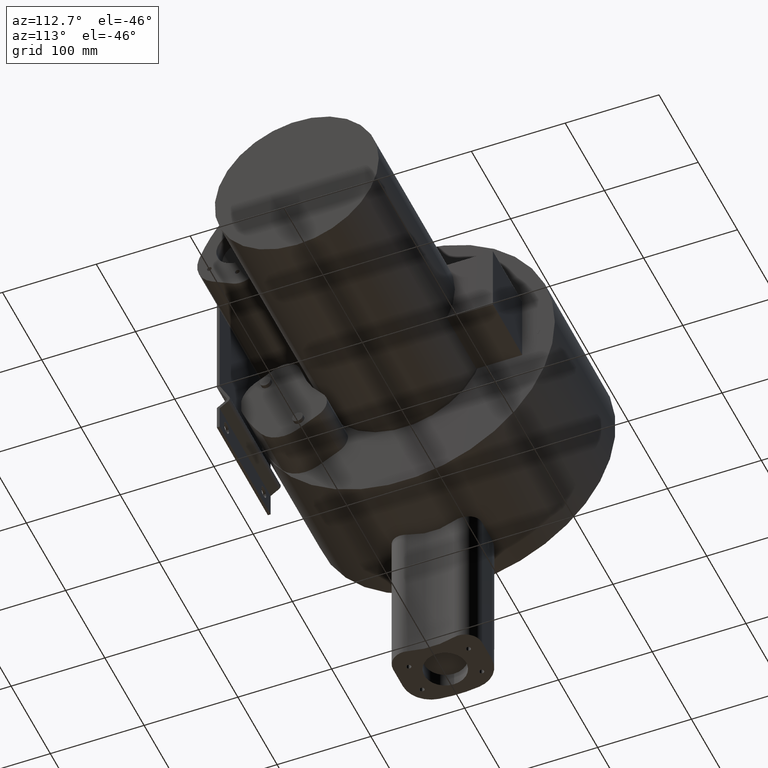
[diagram: clean part render]
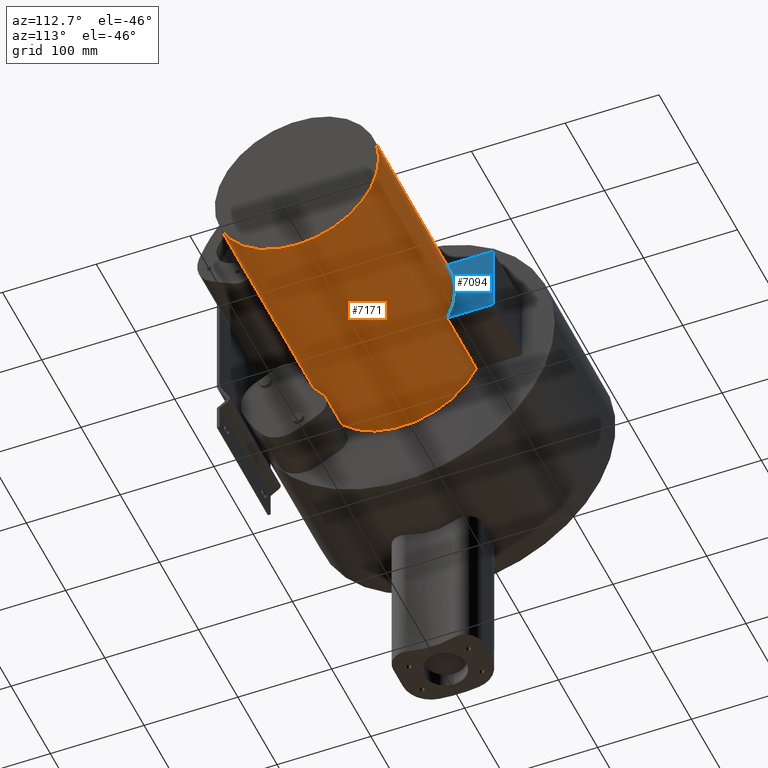
[diagram: same view with the hole feature highlighted: cylindrical wall and planar end face, labeled with their STEP entity ids]
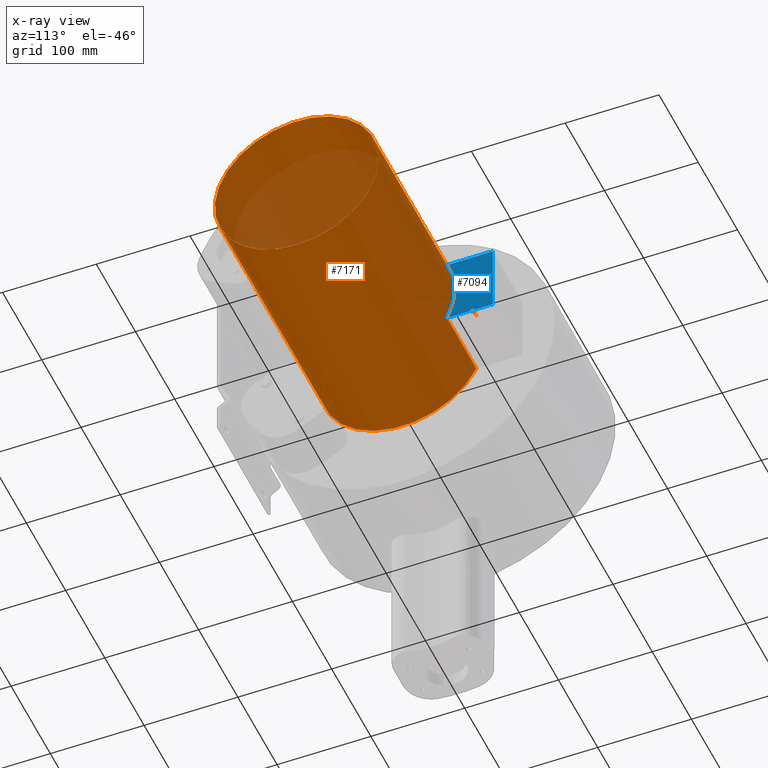
[diagram: x-ray of the same camera — body ghosted, the hole faces saturated]
A machine part, auxiliary view. The highlighted faces form one hole feature of diameter 175 mm: the cylindrical wall (entity #7171, orange) and its adjacent planar end face (entity #7094, blue) — they share a circular edge in the B-rep.
The next image is the same camera in x-ray (body ghosted, the hole faces saturated) — the bore reads through the body.
Wall:
#7028=CARTESIAN_POINT('',(159.00000000000003,79.056941504209476,-37.5));
#7029=VERTEX_POINT('',#7028);
#7030=CARTESIAN_POINT('',(234.00000000000003,79.056941504209476,-37.5));
#7031=VERTEX_POINT('',#7030);
#7032=CARTESIAN_POINT('',(159.00000000000003,79.056941504209476,-37.5));
#7033=DIRECTION('',(1.0,0.0,0.0));
#7034=VECTOR('',#7033,75.0);
#7035=LINE('',#7032,#7034);
#7036=EDGE_CURVE('',#7029,#7031,#7035,.T.);
#7068=CARTESIAN_POINT('',(234.00000000000003,79.056941504209476,37.5));
#7069=VERTEX_POINT('',#7068);
#7070=CARTESIAN_POINT('',(234.00000000000003,0.0,0.0));
#7071=DIRECTION('',(1.0,0.0,0.0));
#7072=DIRECTION('',(0.0,0.0,1.0));
#7073=AXIS2_PLACEMENT_3D('',#7070,#7071,#7072);
#7074=CIRCLE('',#7073,87.5);
#7075=EDGE_CURVE('',#7031,#7069,#7074,.T.);
#7100=CARTESIAN_POINT('',(159.00000000000003,79.056941504209476,37.5));
#7101=VERTEX_POINT('',#7100);
#7102=CARTESIAN_POINT('',(234.00000000000003,79.056941504209476,37.5));
#7103=DIRECTION('',(-1.0,0.0,0.0));
#7104=VECTOR('',#7103,75.0);
#7105=LINE('',#7102,#7104);
#7106=EDGE_CURVE('',#7069,#7101,#7105,.T.);
#7143=CARTESIAN_POINT('',(159.00000000000003,0.0,0.0));
#7144=DIRECTION('',(1.0,0.0,0.0));
#7145=DIRECTION('',(0.0,0.0,1.0));
#7146=AXIS2_PLACEMENT_3D('',#7143,#7144,#7145);
#7147=CYLINDRICAL_SURFACE('',#7146,87.5);
#7148=ORIENTED_EDGE('',*,*,#7036,.T.);
#7149=ORIENTED_EDGE('',*,*,#7075,.T.);
#7150=ORIENTED_EDGE('',*,*,#7106,.T.);
#7151=CARTESIAN_POINT('',(159.00000000000003,0.0,0.0));
#7152=DIRECTION('',(-1.0,0.0,0.0));
#7153=DIRECTION('',(0.0,0.0,1.0));
#7154=AXIS2_PLACEMENT_3D('',#7151,#7152,#7153);
#7155=CIRCLE('',#7154,87.5);
#7156=EDGE_CURVE('',#7029,#7101,#7155,.T.);
#7157=ORIENTED_EDGE('',*,*,#7156,.F.);
#7158=EDGE_LOOP('',(#7148,#7149,#7150,#7157));
#7159=FACE_OUTER_BOUND('',#7158,.T.);
#7160=CARTESIAN_POINT('',(428.00000000000006,1.071566E-014,-87.5));
#7161=VERTEX_POINT('',#7160);
#7162=CARTESIAN_POINT('',(428.00000000000006,0.0,0.0));
#7163=DIRECTION('',(-1.0,0.0,0.0));
#7164=DIRECTION('',(0.0,0.0,1.0));
#7165=AXIS2_PLACEMENT_3D('',#7162,#7163,#7164);
#7166=CIRCLE('',#7165,87.5);
#7167=EDGE_CURVE('',#7161,#7161,#7166,.T.);
#7168=ORIENTED_EDGE('',*,*,#7167,.T.);
#7169=EDGE_LOOP('',(#7168));
#7170=FACE_BOUND('',#7169,.T.);
#7171=ADVANCED_FACE('',(#7159,#7170),#7147,.T.);
End face:
#7030=CARTESIAN_POINT('',(234.00000000000003,79.056941504209476,-37.5));
#7031=VERTEX_POINT('',#7030);
#7046=CARTESIAN_POINT('',(234.00000000000003,128.0,-37.5));
#7047=VERTEX_POINT('',#7046);
#7054=CARTESIAN_POINT('',(234.00000000000003,79.056941504209476,-37.5));
#7055=DIRECTION('',(0.0,1.0,0.0));
#7056=VECTOR('',#7055,48.943058495790524);
#7057=LINE('',#7054,#7056);
#7058=EDGE_CURVE('',#7031,#7047,#7057,.T.);
#7063=CARTESIAN_POINT('',(234.00000000000003,0.0,0.0));
#7064=DIRECTION('',(1.0,0.0,0.0));
#7065=DIRECTION('',(0.0,0.0,-1.0));
#7066=AXIS2_PLACEMENT_3D('',#7063,#7064,#7065);
#7067=PLANE('',#7066);
#7068=CARTESIAN_POINT('',(234.00000000000003,79.056941504209476,37.5));
#7069=VERTEX_POINT('',#7068);
#7070=CARTESIAN_POINT('',(234.00000000000003,0.0,0.0));
#7071=DIRECTION('',(1.0,0.0,0.0));
#7072=DIRECTION('',(0.0,0.0,1.0));
#7073=AXIS2_PLACEMENT_3D('',#7070,#7071,#7072);
#7074=CIRCLE('',#7073,87.5);
#7075=EDGE_CURVE('',#7031,#7069,#7074,.T.);
#7076=ORIENTED_EDGE('',*,*,#7075,.F.);
#7077=ORIENTED_EDGE('',*,*,#7058,.T.);
#7078=CARTESIAN_POINT('',(234.00000000000003,128.0,37.5));
#7079=VERTEX_POINT('',#7078);
#7080=CARTESIAN_POINT('',(234.00000000000003,128.0,-37.5));
#7081=DIRECTION('',(0.0,0.0,1.0));
#7082=VECTOR('',#7081,75.0);
#7083=LINE('',#7080,#7082);
#7084=EDGE_CURVE('',#7047,#7079,#7083,.T.);
#7085=ORIENTED_EDGE('',*,*,#7084,.T.);
#7086=CARTESIAN_POINT('',(234.00000000000003,79.056941504209476,37.5));
#7087=DIRECTION('',(0.0,1.0,0.0));
#7088=VECTOR('',#7087,48.943058495790524);
#7089=LINE('',#7086,#7088);
#7090=EDGE_CURVE('',#7069,#7079,#7089,.T.);
#7091=ORIENTED_EDGE('',*,*,#7090,.F.);
#7092=EDGE_LOOP('',(#7076,#7077,#7085,#7091));
#7093=FACE_OUTER_BOUND('',#7092,.T.);
#7094=ADVANCED_FACE('',(#7093),#7067,.T.);